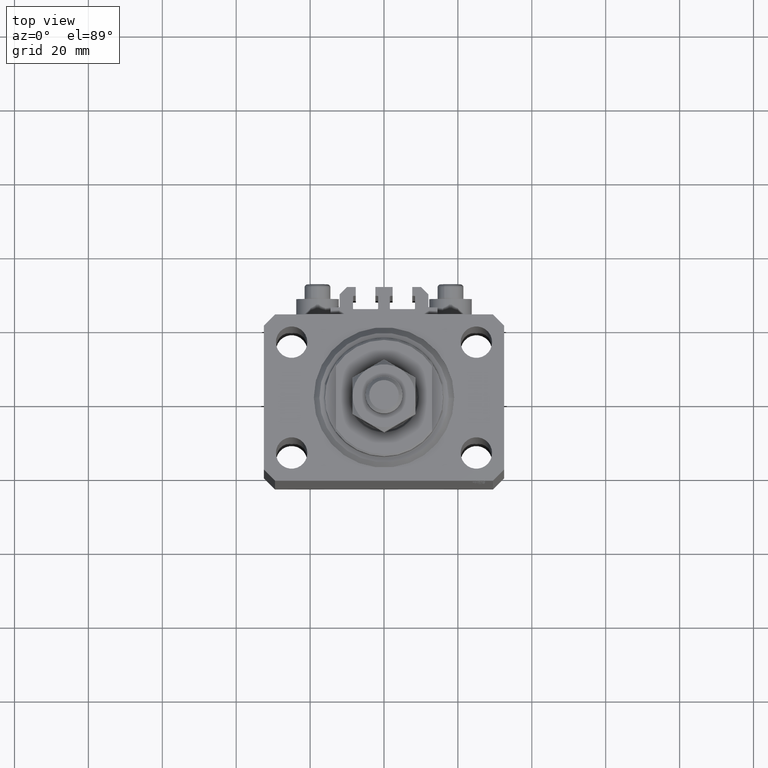
[diagram: clean part render]
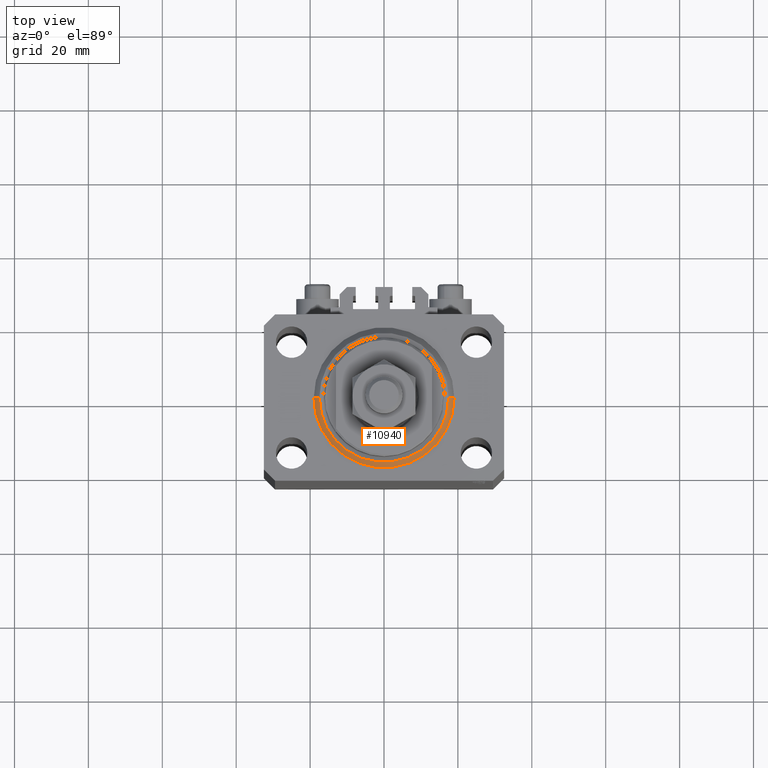
[diagram: same view with one face highlighted and labeled with its STEP entity id]
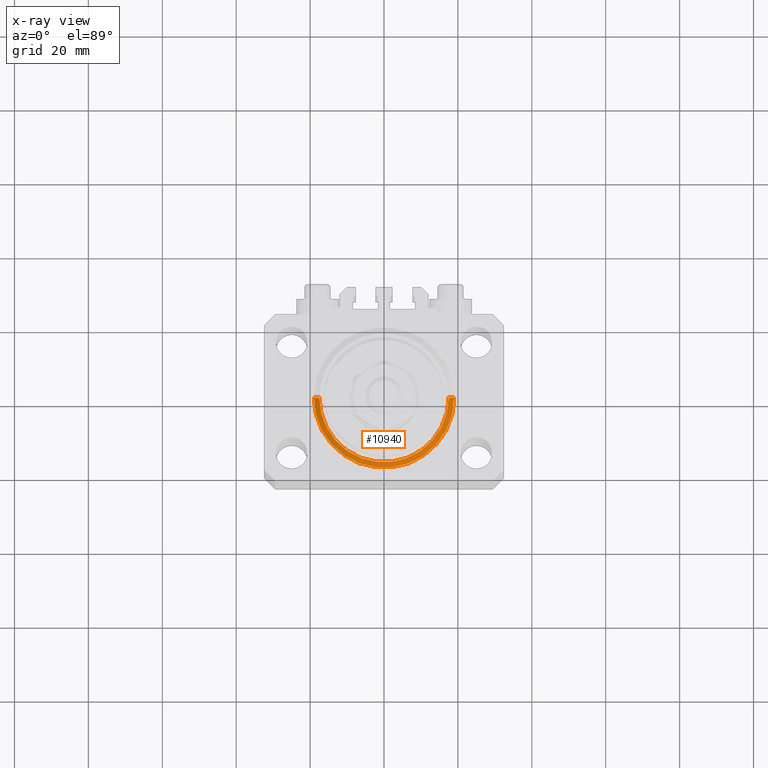
[diagram: x-ray of the same camera — body ghosted, the highlighted face saturated]
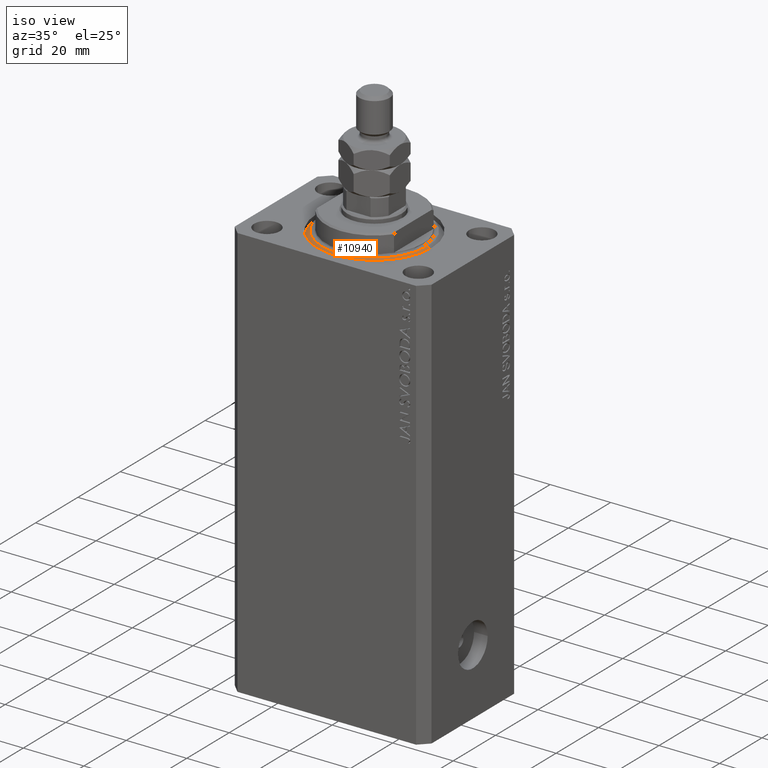
[diagram: same view with one face highlighted and labeled with its STEP entity id]
A machine part, top view. The second image highlights one B-rep face of the part: STEP entity #10940.
The next image is the same camera in x-ray: the body ghosted, the highlighted face saturated — about 0% of this face is hidden behind the body in this view.
A second angle (iso view) of the same face is appended — the face is thin or edge-on in the first view.
In plain terms, the highlighted conical surface has half-angle 45 deg.
Its self-contained STEP definition (entity closure, byte-faithful):
#1361 = EDGE_CURVE ( 'NONE', #29795, #37166, #9154, .T. ) ;
#2998 = CARTESIAN_POINT ( 'NONE',  ( 0.000000000000000000, 0.000000000000000000, 1.500000000000004885 ) ) ;
#3730 = DIRECTION ( 'NONE',  ( -0.000000000000000000, -0.000000000000000000, 1.000000000000000000 ) ) ;
#4016 = CARTESIAN_POINT ( 'NONE',  ( 19.00000000000000000, 0.000000000000000000, 1.500000000000004885 ) ) ;
#4955 = DIRECTION ( 'NONE',  ( 1.000000000000000000, 0.000000000000000000, 0.000000000000000000 ) ) ;
#6859 = EDGE_CURVE ( 'NONE', #20354, #17563, #16097, .T. ) ;
#7023 = ORIENTED_EDGE ( 'NONE', *, *, #45975, .F. ) ;
#7295 = AXIS2_PLACEMENT_3D ( 'NONE', #16310, #19775, #4955 ) ;
#7350 = CARTESIAN_POINT ( 'NONE',  ( -19.00000000000000000, 0.000000000000000000, 1.500000000000004885 ) ) ;
#8909 = DIRECTION ( 'NONE',  ( -0.7071067811865483499, 8.659560562354943952E-17, 0.7071067811865467956 ) ) ;
#9154 = LINE ( 'NONE', #23522, #16373 ) ;
#10562 = AXIS2_PLACEMENT_3D ( 'NONE', #2998, #3730, #45258 ) ;
#10940 = ADVANCED_FACE ( 'NONE', ( #38812 ), #39648, .T. ) ;
#11910 = DIRECTION ( 'NONE',  ( 0.7071067811865483499, 0.000000000000000000, 0.7071067811865467956 ) ) ;
#14188 = EDGE_LOOP ( 'NONE', ( #29766, #37936, #31172, #7023 ) ) ;
#16097 = LINE ( 'NONE', #4016, #42593 ) ;
#16310 = CARTESIAN_POINT ( 'NONE',  ( 0.000000000000000000, 0.000000000000000000, 1.500000000000004885 ) ) ;
#16373 = VECTOR ( 'NONE', #8909, 1000.000000000000000 ) ;
#16833 = CARTESIAN_POINT ( 'NONE',  ( 17.49999999999999289, 0.000000000000000000, 0.000000000000000000 ) ) ;
#17563 = VERTEX_POINT ( 'NONE', #43112 ) ;
#19775 = DIRECTION ( 'NONE',  ( -0.000000000000000000, -0.000000000000000000, 1.000000000000000000 ) ) ;
#20354 = VERTEX_POINT ( 'NONE', #16833 ) ;
#23409 = CARTESIAN_POINT ( 'NONE',  ( -17.49999999999999289, 2.234980408443919215E-15, 0.000000000000000000 ) ) ;
#23522 = CARTESIAN_POINT ( 'NONE',  ( -19.00000000000000000, 2.326828918379970970E-15, 1.500000000000004885 ) ) ;
#28347 = AXIS2_PLACEMENT_3D ( 'NONE', #43855, #36194, #44100 ) ;
#29766 = ORIENTED_EDGE ( 'NONE', *, *, #1361, .F. ) ;
#29795 = VERTEX_POINT ( 'NONE', #23409 ) ;
#31172 = ORIENTED_EDGE ( 'NONE', *, *, #6859, .T. ) ;
#31303 = EDGE_CURVE ( 'NONE', #20354, #29795, #31483, .T. ) ;
#31483 = CIRCLE ( 'NONE', #28347, 17.49999999999999289 ) ;
#31859 = CIRCLE ( 'NONE', #10562, 19.00000000000000000 ) ;
#36194 = DIRECTION ( 'NONE',  ( -0.000000000000000000, -0.000000000000000000, -1.000000000000000000 ) ) ;
#37166 = VERTEX_POINT ( 'NONE', #7350 ) ;
#37936 = ORIENTED_EDGE ( 'NONE', *, *, #31303, .F. ) ;
#38812 = FACE_OUTER_BOUND ( 'NONE', #14188, .T. ) ;
#39648 = CONICAL_SURFACE ( 'NONE', #7295, 19.00000000000000000, 0.7853981633974492782 ) ;
#42593 = VECTOR ( 'NONE', #11910, 1000.000000000000000 ) ;
#43112 = CARTESIAN_POINT ( 'NONE',  ( 19.00000000000000000, 2.326828918379970970E-15, 1.500000000000004885 ) ) ;
#43855 = CARTESIAN_POINT ( 'NONE',  ( 0.000000000000000000, 0.000000000000000000, 0.000000000000000000 ) ) ;
#44100 = DIRECTION ( 'NONE',  ( 1.000000000000000000, 0.000000000000000000, 0.000000000000000000 ) ) ;
#45258 = DIRECTION ( 'NONE',  ( 1.000000000000000000, 0.000000000000000000, 0.000000000000000000 ) ) ;
#45975 = EDGE_CURVE ( 'NONE', #37166, #17563, #31859, .T. ) ;